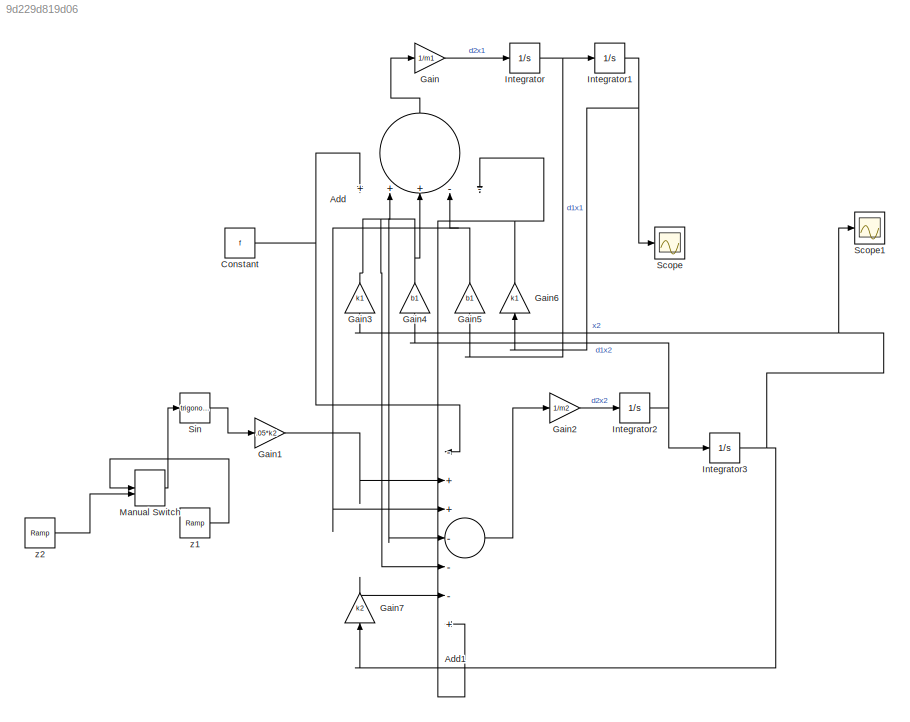
MODEL slx_9d229d819d06
KIND model
CONFIG AbsTol = auto
CONFIG EnableMultiTasking = off
CONFIG FixedStep = auto
CONFIG MaxStep = time
CONFIG MinStep = auto
CONFIG RelTol = 1e-3
CONFIG SampleTimeConstraint = Unconstrained
CONFIG SolverName = VariableStepAuto
CONFIG StartTime = 0.0
CONFIG StopTime = 10.0
BLOCK [Sum] Add
  Inputs = +++--
  NameLocation = right
BLOCK [Sum] Add1
  Inputs = -++---+
BLOCK [Constant] Constant
  Value = f
BLOCK [Gain] Gain
  Gain = 1/m1
BLOCK [Gain] Gain1
  Gain = .05*k2
BLOCK [Gain] Gain2
  Gain = 1/m2
BLOCK [Gain] Gain3
  Gain = k1
  NameLocation = right
BLOCK [Gain] Gain4
  Gain = b1
  NameLocation = right
BLOCK [Gain] Gain5
  Gain = b1
  NameLocation = right
BLOCK [Gain] Gain6
  Gain = k1
  NameLocation = right
BLOCK [Gain] Gain7
  Gain = k2
  NameLocation = right
BLOCK [Integrator] Integrator
BLOCK [Integrator] Integrator1
BLOCK [Integrator] Integrator2
BLOCK [Integrator] Integrator3
BLOCK [ManualSwitch] Manual Switch
BLOCK [Scope] Scope
  Floating = off
  NumInputPorts = 1
  ScopeSpecificationString = Simulink.scopes.TimeScopeBlockCfg('CurrentConfiguration', extmgr.ConfigurationSet(extmgr.Configuration('Core','General UI',true,'FigureColor',[0.470588235294118 0.305882352941176 0.447058823529412]),extmgr.Configuration('Core','Source UI',true),extmgr.Configuration('Sources','WiredSimulink',true),extmgr.Configuration('Visuals','Time Domain',true,'SerializedDisplays',{struct('MinYLimReal','-0.07025...<+1430ch>
BLOCK [Scope] Scope1
  Floating = off
  NumInputPorts = 1
  ScopeSpecificationString = Simulink.scopes.TimeScopeBlockCfg('CurrentConfiguration', extmgr.ConfigurationSet(extmgr.Configuration('Core','General UI',true,'FigureColor',[0.470588235294118 0.305882352941176 0.447058823529412]),extmgr.Configuration('Core','Source UI',true),extmgr.Configuration('Sources','WiredSimulink',true,'DataLoggingVariableName','ScopeData1'),extmgr.Configuration('Visuals','Time Domain',true,'SerializedDi...<+1429ch>
BLOCK [Trigonometry] Sin
BLOCK [Reference] z1  REF=simulink/Sources/Ramp
  SourceBlock = simulink/Sources/Ramp
  SourceType = Ramp
BLOCK [Reference] z2  REF=simulink/Sources/Ramp
  SourceBlock = simulink/Sources/Ramp
  SourceType = Ramp
LINE Add1:1 -> Gain2:1
LINE Add:1 -> Gain:1
NET Constant:1 -> Add1:1, Add:1
LINE Gain1:1 -> Add1:2
LINE Gain2:1 -> Integrator2:1
NET Gain3:1 -> Add1:5, Add:2
NET Gain4:1 -> Add1:4, Add:3
NET Gain5:1 -> Add1:3, Add:4
NET Gain6:1 -> Add1:7, Add:5
LINE Gain7:1 -> Add1:6
LINE Gain:1 -> Integrator:1
NET Integrator1:1 -> Gain6:1, Scope:1
NET Integrator2:1 -> Gain4:1, Integrator3:1
NET Integrator3:1 -> Gain3:1, Gain7:1, Scope1:1
NET Integrator:1 -> Gain5:1, Integrator1:1
LINE Manual Switch:1 -> Sin:1
LINE Sin:1 -> Gain1:1
LINE z1:1 -> Manual Switch:1
LINE z2:1 -> Manual Switch:2
note: NET lines group one-source signal fan-out (src -> all destinations, sorted); 1:1 wires keep LINE
